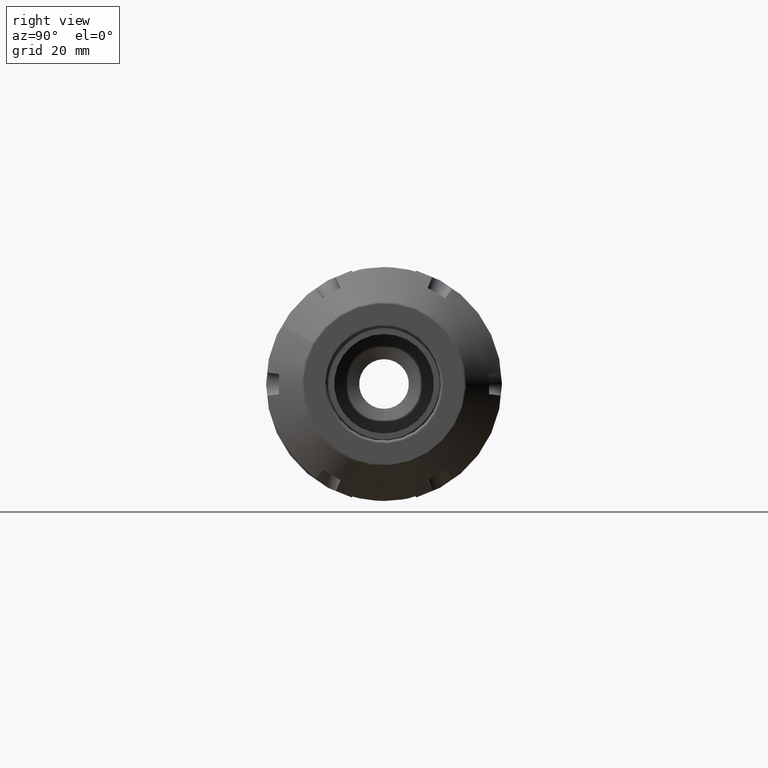
[diagram: clean part render]
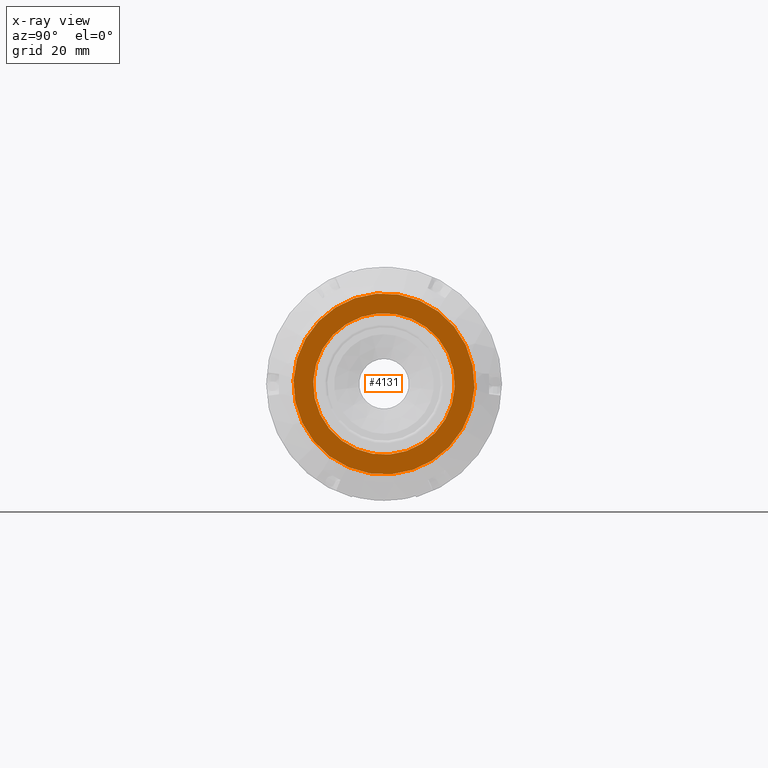
[diagram: x-ray — body ghosted, one internal face saturated and labeled with its STEP entity id]
A machine part, right view, then the same camera in x-ray: the body is ghosted and one INTERNAL B-rep face — a face not visible from any outside direction — is saturated and labeled: STEP entity #4131.
In plain terms, the highlighted planar face has unit normal (-1, 0, 0).
Its self-contained STEP definition (entity closure, byte-faithful):
#4089=CARTESIAN_POINT('',(-0.575,0.96,0.0));
#4090=VERTEX_POINT('',#4089);
#4091=CARTESIAN_POINT('',(-0.575,0.0,0.0));
#4092=DIRECTION('',(1.0,0.0,0.0));
#4093=DIRECTION('',(0.0,-1.0,0.0));
#4094=AXIS2_PLACEMENT_3D('',#4091,#4092,#4093);
#4095=CIRCLE('',#4094,0.96);
#4096=EDGE_CURVE('',#4090,#4090,#4095,.T.);
#4112=CARTESIAN_POINT('',(-0.575,0.87,0.0));
#4113=DIRECTION('',(-1.0,0.0,0.0));
#4114=DIRECTION('',(0.0,0.0,1.0));
#4115=AXIS2_PLACEMENT_3D('',#4112,#4113,#4114);
#4116=PLANE('',#4115);
#4117=ORIENTED_EDGE('',*,*,#4096,.F.);
#4118=EDGE_LOOP('',(#4117));
#4119=FACE_OUTER_BOUND('',#4118,.T.);
#4120=CARTESIAN_POINT('',(-0.575,0.75,0.0));
#4121=VERTEX_POINT('',#4120);
#4122=CARTESIAN_POINT('',(-0.575,0.0,0.0));
#4123=DIRECTION('',(1.0,0.0,0.0));
#4124=DIRECTION('',(0.0,1.0,0.0));
#4125=AXIS2_PLACEMENT_3D('',#4122,#4123,#4124);
#4126=CIRCLE('',#4125,0.75);
#4127=EDGE_CURVE('',#4121,#4121,#4126,.T.);
#4128=ORIENTED_EDGE('',*,*,#4127,.T.);
#4129=EDGE_LOOP('',(#4128));
#4130=FACE_BOUND('',#4129,.T.);
#4131=ADVANCED_FACE('',(#4119,#4130),#4116,.T.);